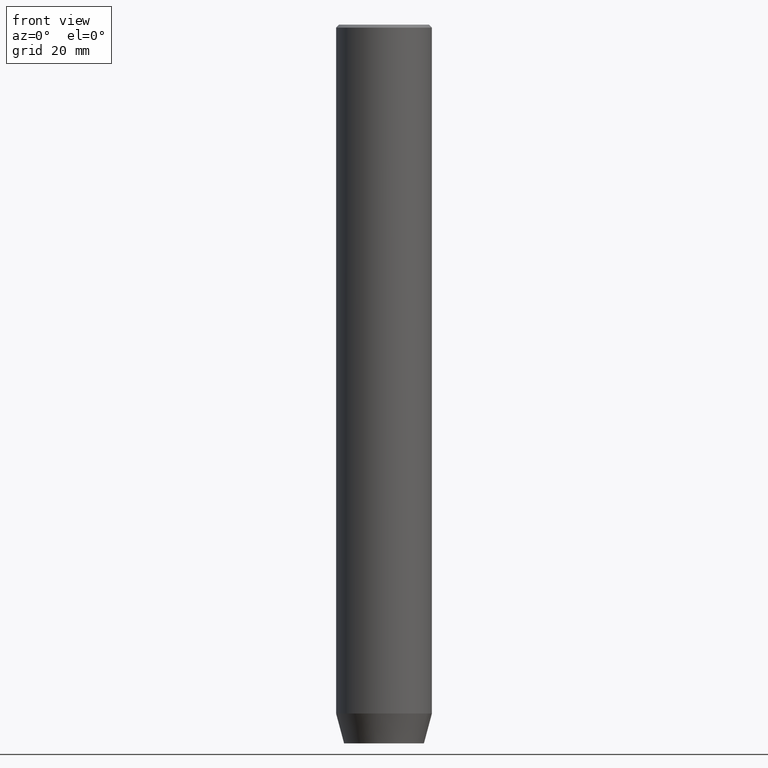
[diagram: clean part render]
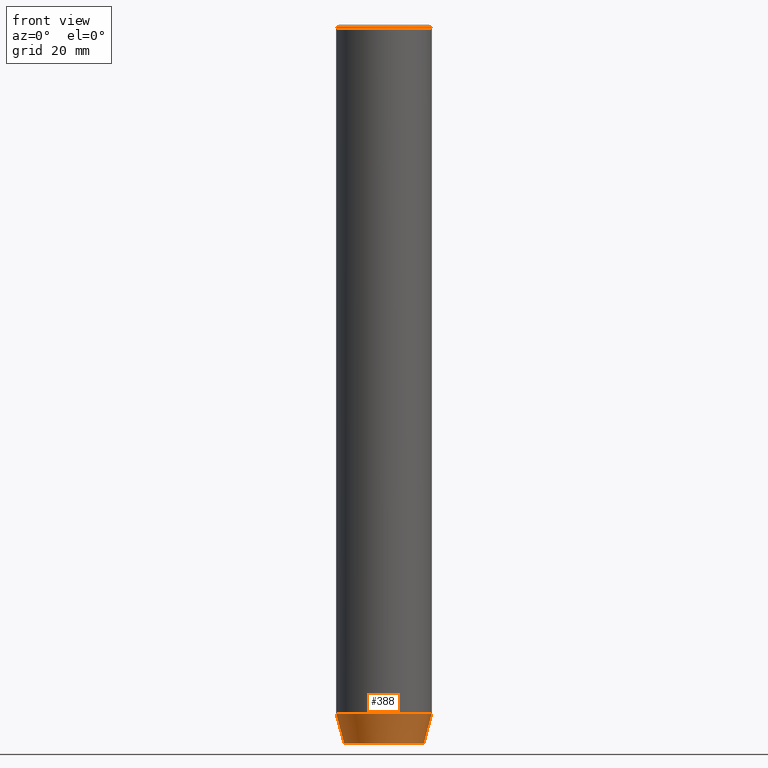
[diagram: same view with one face highlighted and labeled with its STEP entity id]
A machine part, front view. The second image highlights one B-rep face of the part: STEP entity #388.
In plain terms, the highlighted conical surface has half-angle 15 deg.
Its self-contained STEP definition (entity closure, byte-faithful):
#7 = DIRECTION ( 'NONE',  ( -0.000000000000000000, -0.000000000000000000, 1.000000000000000000 ) ) ;
#21 = EDGE_CURVE ( 'NONE', #580, #531, #525, .T. ) ;
#43 = ORIENTED_EDGE ( 'NONE', *, *, #315, .T. ) ;
#112 = VECTOR ( 'NONE', #451, 1000.000000000000000 ) ;
#123 = DIRECTION ( 'NONE',  ( -0.000000000000000000, -0.000000000000000000, 1.000000000000000000 ) ) ;
#132 = CARTESIAN_POINT ( 'NONE',  ( -8.000000000000000000, 9.797174393178825657E-16, -114.9999999999999858 ) ) ;
#151 = DIRECTION ( 'NONE',  ( -0.000000000000000000, -0.000000000000000000, 1.000000000000000000 ) ) ;
#153 = CONICAL_SURFACE ( 'NONE', #258, 8.000000000000000000, 0.2617993877991500740 ) ;
#162 = ORIENTED_EDGE ( 'NONE', *, *, #502, .F. ) ;
#191 = CARTESIAN_POINT ( 'NONE',  ( 0.000000000000000000, 0.000000000000000000, -114.9999999999999858 ) ) ;
#251 = CARTESIAN_POINT ( 'NONE',  ( 6.660254037844381969, 0.000000000000000000, -120.0000000000000000 ) ) ;
#258 = AXIS2_PLACEMENT_3D ( 'NONE', #191, #151, #384 ) ;
#261 = CARTESIAN_POINT ( 'NONE',  ( 8.000000000000000000, 0.000000000000000000, -114.9999999999999858 ) ) ;
#268 = CIRCLE ( 'NONE', #308, 8.000000000000000000 ) ;
#299 = VECTOR ( 'NONE', #374, 1000.000000000000000 ) ;
#304 = DIRECTION ( 'NONE',  ( 1.000000000000000000, 0.000000000000000000, 0.000000000000000000 ) ) ;
#308 = AXIS2_PLACEMENT_3D ( 'NONE', #346, #123, #304 ) ;
#315 = EDGE_CURVE ( 'NONE', #531, #501, #543, .T. ) ;
#317 = VERTEX_POINT ( 'NONE', #132 ) ;
#346 = CARTESIAN_POINT ( 'NONE',  ( 0.000000000000000000, 0.000000000000000000, -114.9999999999999858 ) ) ;
#359 = DIRECTION ( 'NONE',  ( 1.000000000000000000, 0.000000000000000000, 0.000000000000000000 ) ) ;
#371 = ORIENTED_EDGE ( 'NONE', *, *, #415, .F. ) ;
#374 = DIRECTION ( 'NONE',  ( -0.2588190451025213501, 3.169619151431772337E-17, 0.9659258262890680902 ) ) ;
#377 = LINE ( 'NONE', #557, #299 ) ;
#382 = CARTESIAN_POINT ( 'NONE',  ( -6.660254037844381969, 8.976816591066591237E-16, -120.0000000000000000 ) ) ;
#384 = DIRECTION ( 'NONE',  ( 1.000000000000000000, 0.000000000000000000, 0.000000000000000000 ) ) ;
#388 = ADVANCED_FACE ( 'NONE', ( #514 ), #153, .T. ) ;
#394 = CARTESIAN_POINT ( 'NONE',  ( 8.000000000000000000, 0.000000000000000000, -114.9999999999999858 ) ) ;
#415 = EDGE_CURVE ( 'NONE', #580, #317, #377, .T. ) ;
#421 = AXIS2_PLACEMENT_3D ( 'NONE', #499, #7, #359 ) ;
#451 = DIRECTION ( 'NONE',  ( 0.2588190451025213501, 0.000000000000000000, 0.9659258262890680902 ) ) ;
#499 = CARTESIAN_POINT ( 'NONE',  ( 0.000000000000000000, 0.000000000000000000, -120.0000000000000000 ) ) ;
#501 = VERTEX_POINT ( 'NONE', #394 ) ;
#502 = EDGE_CURVE ( 'NONE', #317, #501, #268, .T. ) ;
#514 = FACE_OUTER_BOUND ( 'NONE', #542, .T. ) ;
#525 = CIRCLE ( 'NONE', #421, 6.660254037844381969 ) ;
#531 = VERTEX_POINT ( 'NONE', #251 ) ;
#534 = ORIENTED_EDGE ( 'NONE', *, *, #21, .T. ) ;
#542 = EDGE_LOOP ( 'NONE', ( #371, #534, #43, #162 ) ) ;
#543 = LINE ( 'NONE', #261, #112 ) ;
#557 = CARTESIAN_POINT ( 'NONE',  ( -8.000000000000000000, 9.797174393178825657E-16, -114.9999999999999858 ) ) ;
#580 = VERTEX_POINT ( 'NONE', #382 ) ;